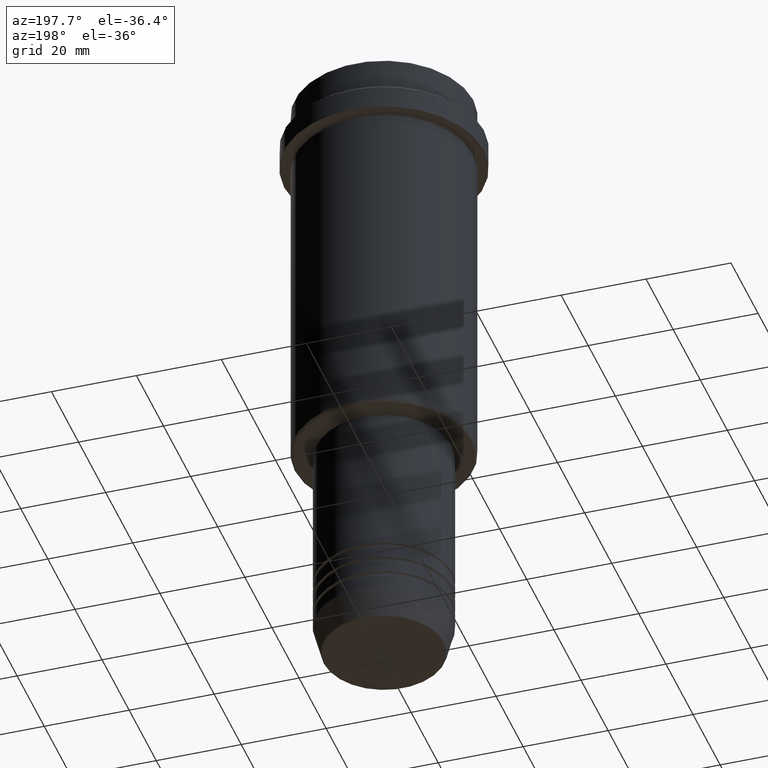
[diagram: clean part render]
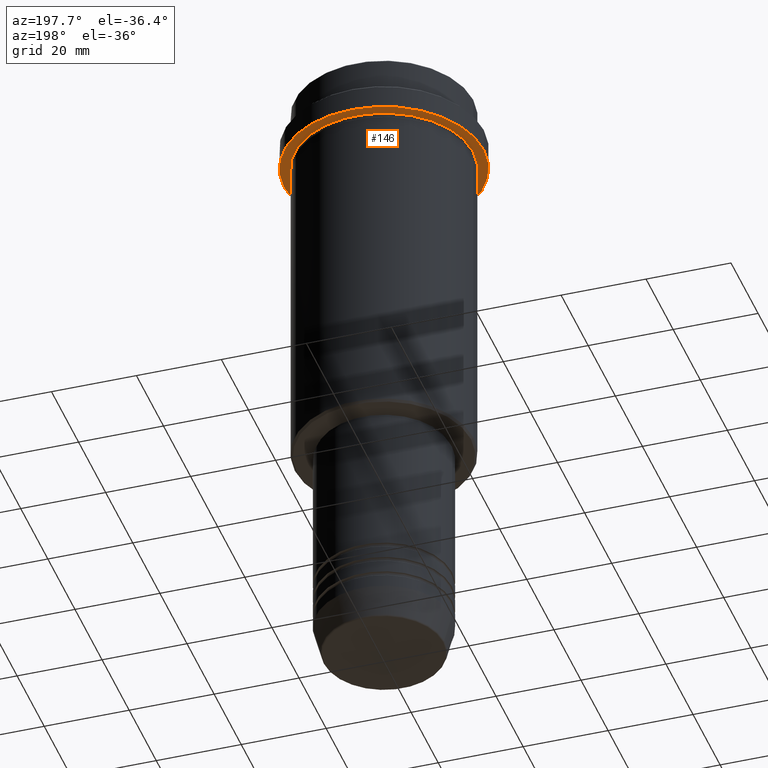
[diagram: same view with one face highlighted and labeled with its STEP entity id]
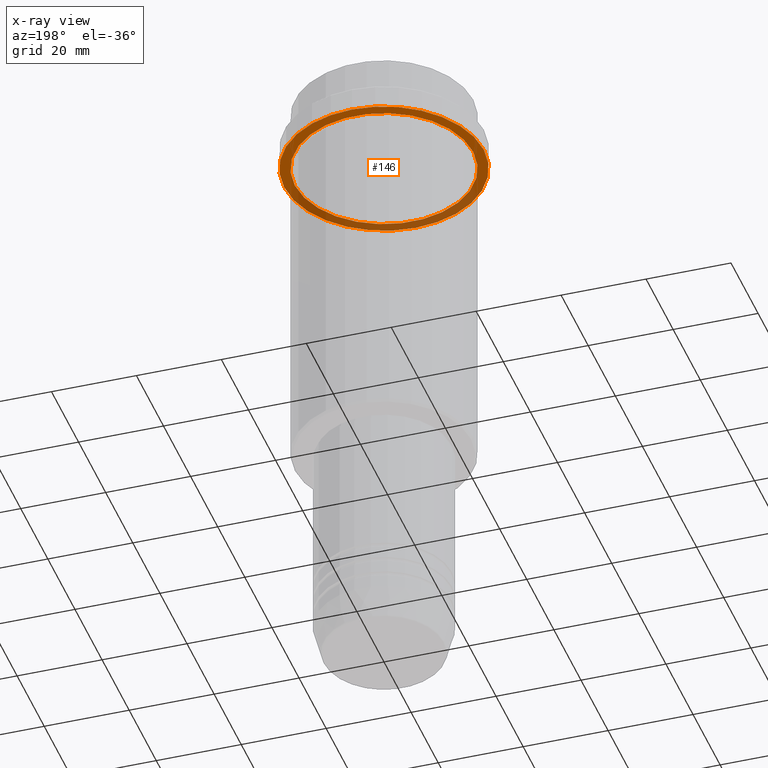
[diagram: x-ray of the same camera — body ghosted, the highlighted face saturated]
A machine part, auxiliary view. The second image highlights one B-rep face of the part: STEP entity #146.
The next image is the same camera in x-ray: the body ghosted, the highlighted face saturated — about 37% of this face is hidden behind the body in this view.
In plain terms, the highlighted planar face has unit normal (0, 0, -1).
Its self-contained STEP definition (entity closure, byte-faithful):
#8 = CIRCLE ( 'NONE', #189, 20.99999999999999289 ) ;
#25 = AXIS2_PLACEMENT_3D ( 'NONE', #724, #1165, #70 ) ;
#70 = DIRECTION ( 'NONE',  ( 1.000000000000000000, 0.000000000000000000, 0.000000000000000000 ) ) ;
#78 = ORIENTED_EDGE ( 'NONE', *, *, #828, .F. ) ;
#90 = EDGE_LOOP ( 'NONE', ( #1079, #1340 ) ) ;
#122 = CARTESIAN_POINT ( 'NONE',  ( -20.99999999999999289, 0.000000000000000000, -15.00000000000000178 ) ) ;
#146 = ADVANCED_FACE ( 'NONE', ( #406, #1294 ), #305, .T. ) ;
#150 = CARTESIAN_POINT ( 'NONE',  ( 23.50000000000000355, 0.000000000000000000, -15.00000000000000000 ) ) ;
#155 = VERTEX_POINT ( 'NONE', #122 ) ;
#189 = AXIS2_PLACEMENT_3D ( 'NONE', #548, #760, #213 ) ;
#213 = DIRECTION ( 'NONE',  ( -1.000000000000000000, 0.000000000000000000, 0.000000000000000000 ) ) ;
#275 = CIRCLE ( 'NONE', #1086, 20.99999999999999289 ) ;
#278 = CIRCLE ( 'NONE', #25, 23.50000000000000355 ) ;
#305 = PLANE ( 'NONE',  #340 ) ;
#316 = VERTEX_POINT ( 'NONE', #794 ) ;
#340 = AXIS2_PLACEMENT_3D ( 'NONE', #744, #673, #1105 ) ;
#369 = AXIS2_PLACEMENT_3D ( 'NONE', #399, #1116, #1320 ) ;
#399 = CARTESIAN_POINT ( 'NONE',  ( 0.000000000000000000, 0.000000000000000000, -15.00000000000000000 ) ) ;
#406 = FACE_BOUND ( 'NONE', #90, .T. ) ;
#511 = VERTEX_POINT ( 'NONE', #1060 ) ;
#548 = CARTESIAN_POINT ( 'NONE',  ( 0.000000000000000000, 0.000000000000000000, -15.00000000000000178 ) ) ;
#631 = DIRECTION ( 'NONE',  ( -1.000000000000000000, 0.000000000000000000, 0.000000000000000000 ) ) ;
#673 = DIRECTION ( 'NONE',  ( 0.000000000000000000, 0.000000000000000000, -1.000000000000000000 ) ) ;
#724 = CARTESIAN_POINT ( 'NONE',  ( 0.000000000000000000, 0.000000000000000000, -15.00000000000000000 ) ) ;
#742 = CARTESIAN_POINT ( 'NONE',  ( 0.000000000000000000, 0.000000000000000000, -15.00000000000000178 ) ) ;
#744 = CARTESIAN_POINT ( 'NONE',  ( 0.000000000000000000, 23.50000000000000355, -15.00000000000000178 ) ) ;
#760 = DIRECTION ( 'NONE',  ( -0.000000000000000000, -0.000000000000000000, 1.000000000000000000 ) ) ;
#766 = EDGE_CURVE ( 'NONE', #155, #316, #275, .T. ) ;
#794 = CARTESIAN_POINT ( 'NONE',  ( 20.99999999999999289, 2.571758278209440872E-15, -15.00000000000000178 ) ) ;
#828 = EDGE_CURVE ( 'NONE', #1309, #511, #1246, .T. ) ;
#887 = ORIENTED_EDGE ( 'NONE', *, *, #1063, .F. ) ;
#1060 = CARTESIAN_POINT ( 'NONE',  ( -23.50000000000000711, 2.877919977996281109E-15, -15.00000000000000000 ) ) ;
#1063 = EDGE_CURVE ( 'NONE', #511, #1309, #278, .T. ) ;
#1079 = ORIENTED_EDGE ( 'NONE', *, *, #766, .T. ) ;
#1086 = AXIS2_PLACEMENT_3D ( 'NONE', #742, #1402, #631 ) ;
#1091 = EDGE_LOOP ( 'NONE', ( #78, #887 ) ) ;
#1105 = DIRECTION ( 'NONE',  ( -1.000000000000000000, 0.000000000000000000, -0.000000000000000000 ) ) ;
#1116 = DIRECTION ( 'NONE',  ( -0.000000000000000000, -0.000000000000000000, 1.000000000000000000 ) ) ;
#1165 = DIRECTION ( 'NONE',  ( -0.000000000000000000, -0.000000000000000000, 1.000000000000000000 ) ) ;
#1195 = EDGE_CURVE ( 'NONE', #316, #155, #8, .T. ) ;
#1246 = CIRCLE ( 'NONE', #369, 23.50000000000000355 ) ;
#1294 = FACE_OUTER_BOUND ( 'NONE', #1091, .T. ) ;
#1309 = VERTEX_POINT ( 'NONE', #150 ) ;
#1320 = DIRECTION ( 'NONE',  ( 1.000000000000000000, 0.000000000000000000, 0.000000000000000000 ) ) ;
#1340 = ORIENTED_EDGE ( 'NONE', *, *, #1195, .T. ) ;
#1402 = DIRECTION ( 'NONE',  ( -0.000000000000000000, -0.000000000000000000, 1.000000000000000000 ) ) ;